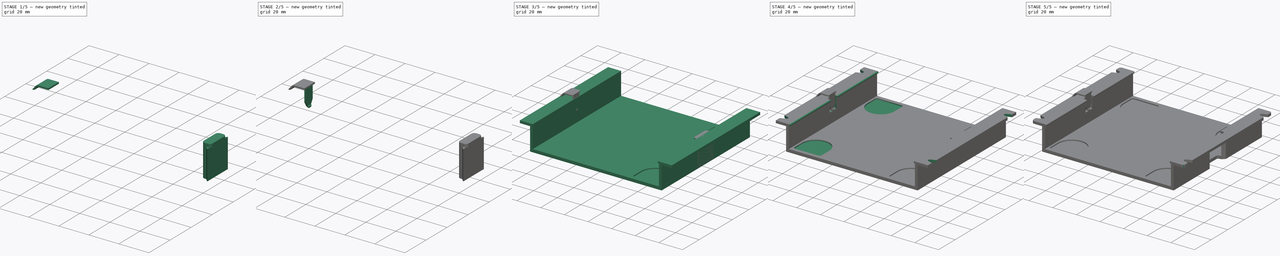
[diagram: build sequence overview — one tinted view per stage of 5, left to right]
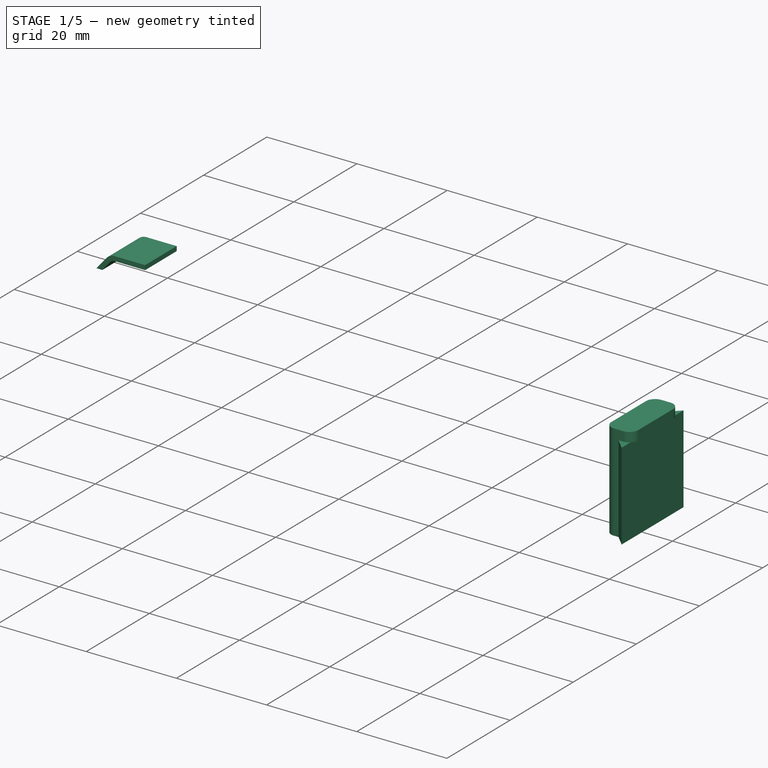
[diagram: stage 1 of 5 — iso view after this stage's code; geometry added in this stage tinted green]
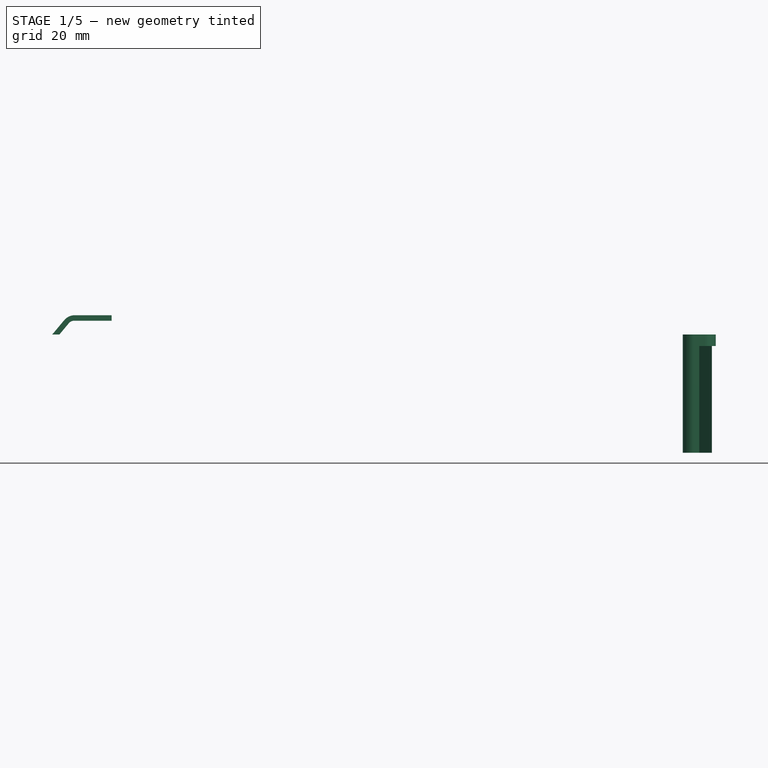
[diagram: stage 1 of 5 — front view after this stage's code; geometry added in this stage tinted green]
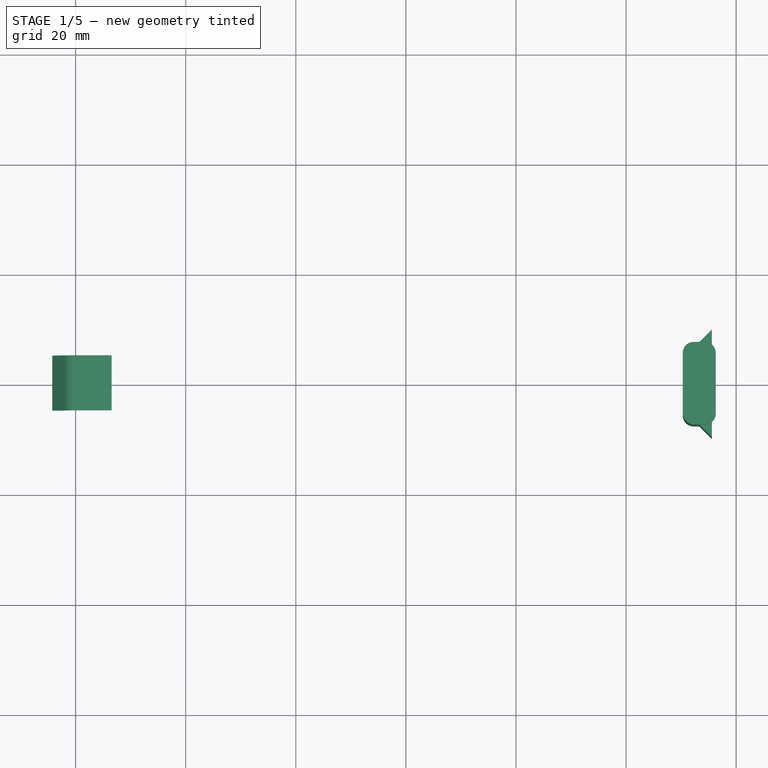
[diagram: stage 1 of 5 — top view after this stage's code; geometry added in this stage tinted green]
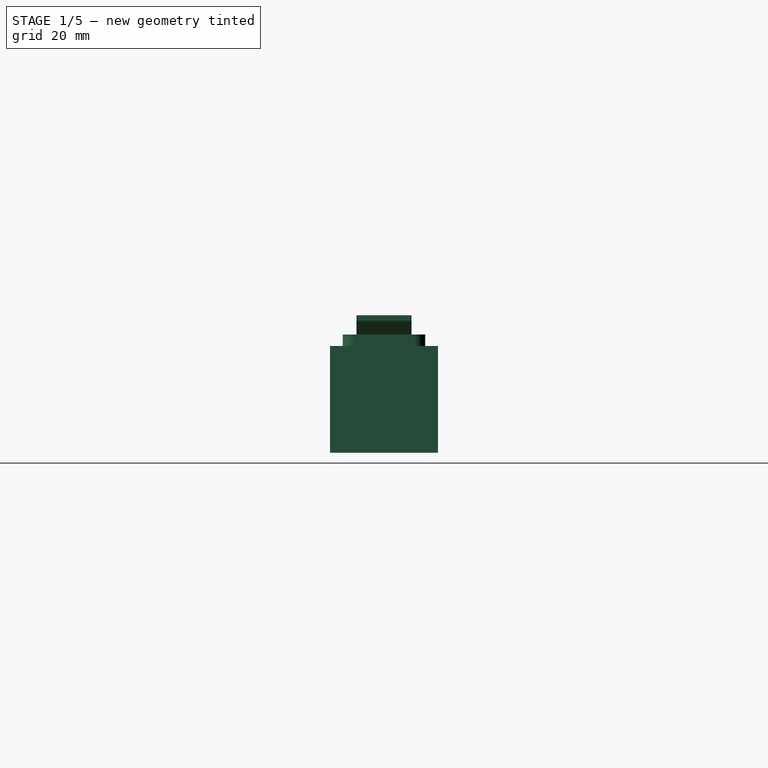
[diagram: stage 1 of 5 — right view after this stage's code; geometry added in this stage tinted green]
FCSTD DOCUMENT  (FreeCAD 0.21R33668 +26 (Git))
Label: eurorack_adapter
License: All rights reserved
LicenseURL: https://en.wikipedia.org/wiki/All_rights_reserved
objects: Sketcher::SketchObject×10, PartDesign::Pad×6, PartDesign::Pocket×4, PartDesign::Body×3, PartDesign::Mirrored×2, PartDesign::Fillet×2, PartDesign::Boolean×2
note: 41 computed .brp shape members not serialized (recipe doc carries the construction recipe); baked Part::Feature solids carry a one-line shape summary decoded from their .brp

FEATURE [Sketcher::SketchObject] Sketch011
  FullyConstrained = true
  MapMode = 5
  Support = -> [XY_Plane002]
  sketch-geometry (8):
    g0: LineSegment StartX=50.3 StartY=5.5 StartZ=0 EndX=50.3 EndY=-5.5 EndZ=0
    g1: LineSegment StartX=52.3 StartY=7.5 StartZ=0 EndX=53.3 EndY=7.5 EndZ=0
    g2: LineSegment StartX=53.3 StartY=-7.5 StartZ=0 EndX=52.3 EndY=-7.5 EndZ=0
    g3: LineSegment StartX=53.3 StartY=-7.5 StartZ=0 EndX=55.6 EndY=-9.8 EndZ=0
    g4: LineSegment StartX=53.3 StartY=7.5 StartZ=0 EndX=55.6 EndY=9.8 EndZ=0
    g5: LineSegment StartX=55.6 StartY=9.8 StartZ=0 EndX=55.6 EndY=-9.8 EndZ=0
    g6: ArcOfCircle CenterX=52.3 CenterY=-5.5 CenterZ=0 NormalX=0 NormalY=0 NormalZ=1 AngleXU=0 Radius=2 StartAngle=3.14159 EndAngle=4.71239
    g7: ArcOfCircle CenterX=52.3 CenterY=5.5 CenterZ=0 NormalX=0 NormalY=0 NormalZ=1 AngleXU=0 Radius=2 StartAngle=1.5708 EndAngle=3.14159
  constraints (19):
    c: Horizontal(g1)
    c: Horizontal(g2)
    c: DistanceX(g-1,g1) = 53.3
    c: Coincident(g4,g1)
    c: Tangent(g2,g6) = 1.5708
    c: Tangent(g0,g6) = -1.5708
    c: Tangent(g1,g7) = 1.5708
    c: Tangent(g0,g7) = -1.5708
    c: DistanceY(g2,g1) = 15
    c: DistanceX(g0,g1) = 3
    c: Symmetric(g0,g0,g-1)
    c: Coincident(g3,g5)
    c: Coincident(g4,g5)
    c: Symmetric(g3,g4,g-1)
    c: Diameter(g7) = 4
    c: Symmetric(g1,g2,g-1)
    c: DistanceX(g1,g4) = 2.3
    c: Angle(g4,g1) = 2.35619
    c: Coincident(g3,g2)
FEATURE [Sketcher::SketchObject] Sketch024
  FullyConstrained = true
  MapMode = 5
  Placement = pos=(0,0,0) rot=(1,0,0;1.5708rad)
  Support = -> [XZ_Plane001]
  sketch-geometry (7):
    g0: LineSegment StartX=-55.7 StartY=3 StartZ=0 EndX=-53.3 EndY=3 EndZ=0
    g1: LineSegment StartX=-53.3 StartY=-16.9 StartZ=0 EndX=0 EndY=-16.9 EndZ=0
    g2: LineSegment StartX=-54.9 StartY=3 StartZ=0 EndX=-54.9 EndY=-6.24863 EndZ=0
    g3: LineSegment StartX=-53.3835 StartY=-7.89322 StartZ=0 EndX=-53.3 EndY=-7.9 EndZ=0
    g4: ArcOfCircle CenterX=-53.25 CenterY=-6.24863 CenterZ=0 NormalX=0 NormalY=0 NormalZ=1 AngleXU=0 Radius=1.65 StartAngle=3.14159 EndAngle=4.63141
    g5: LineSegment StartX=-54.9 StartY=3 StartZ=0 EndX=-51.9 EndY=3 EndZ=0
    g6: LineSegment StartX=-51.9 StartY=3 StartZ=0 EndX=-53.3 EndY=-7.9 EndZ=0
  constraints (23):
    c: Horizontal(g0)
    c: DistanceY(g-1,g0) = 3
    c: PointOnObject(g1,g-2)
    c: Horizontal(g1)
    c: DistanceY(g1,g-1) = 16.9
    c: DistanceX(g1,g1) = 53.3
    c: Vertical(g0,g1)
    c: PointOnObject(g2,g0)
    c: Vertical(g2)
    c: Tangent(g3,g4) = -1.5708
    c: Tangent(g2,g4) = -1.5708
    c: DistanceY(g1,g3) = 9
    c: DistanceX(g0,g0) = 2.4
    c: DistanceX(g0,g2) = 0.8
    c: Vertical(g3,g1)
    c: Coincident(g5,g2)
    c: Horizontal(g5)
    c: Coincident(g6,g5)
    c: Coincident(g6,g3)
    c: DistanceX(g5,g5) = 3
    c: Angle(g3,g2) = 1.65178
    c: Diameter(g4) = 3.3
    c: DistanceX(g2,g-1) = 54.9
FEATURE [Sketcher::SketchObject] Sketch025
  FullyConstrained = true
  MapMode = 5
  Placement = pos=(0,0,0) rot=(1,0,0;1.5708rad)
  Support = -> [XZ_Plane]
  sketch-geometry (27):
    g0: LineSegment StartX=-64.25 StartY=2.1 StartZ=0 EndX=0 EndY=2.1 EndZ=0
    g1: LineSegment StartX=-64.25 StartY=2.1 StartZ=0 EndX=-62.0625 EndY=4.70697 EndZ=0
    g2: LineSegment StartX=-60.1474 StartY=5.6 StartZ=0 EndX=-53.45 EndY=5.6 EndZ=0
    g3: LineSegment StartX=-53.45 StartY=5.6 StartZ=0 EndX=-53.45 EndY=4.6 EndZ=0
    g4: LineSegment StartX=-53.45 StartY=4.6 StartZ=0 EndX=-53.7 EndY=4.6 EndZ=0
    g5: LineSegment StartX=-61.2215 StartY=4.15348 StartZ=0 EndX=-62.9446 EndY=2.1 EndZ=0
    g6: LineSegment StartX=-53.95 StartY=4.6 StartZ=0 EndX=-53.95 EndY=3.1 EndZ=0
    g7: LineSegment StartX=-53.95 StartY=3.1 StartZ=0 EndX=-53.7 EndY=3.1 EndZ=0
    g8: LineSegment StartX=-53.7 StartY=3.1 StartZ=0 EndX=-53.7 EndY=-6.20925 EndZ=0
    g9: LineSegment StartX=-54.45 StartY=4.6 StartZ=0 EndX=-54.45 EndY=3.1 EndZ=0
    g10: LineSegment StartX=-54.45 StartY=3.1 StartZ=0 EndX=-54.7 EndY=3.1 EndZ=0
    g11: LineSegment StartX=-54.7 StartY=3.1 StartZ=0 EndX=-54.7 EndY=-6.10313 EndZ=0
    g12: LineSegment StartX=-53.2 StartY=-7.7 StartZ=0 EndX=-53.2 EndY=-6.7 EndZ=0
    g13: LineSegment StartX=-53.2 StartY=-6.7 StartZ=0 EndX=-53.525 EndY=-6.51236 EndZ=0
    g14: LineSegment StartX=-54.7 StartY=4.6 StartZ=0 EndX=-60.264 EndY=4.6 EndZ=0
    g15: LineSegment StartX=-62.9446 StartY=2.1 StartZ=0 EndX=-63.7106 EndY=2.74279 EndZ=0
    g16: LineSegment StartX=-64.25 StartY=2.1 StartZ=0 EndX=-62.9446 EndY=2.1 EndZ=0
    g17: ArcOfCircle CenterX=-60.1474 CenterY=3.1 CenterZ=0 NormalX=0 NormalY=0 NormalZ=1 AngleXU=0 Radius=2.5 StartAngle=1.5708 EndAngle=2.44346
    g18: ArcOfCircle CenterX=-60.264 CenterY=3.35 CenterZ=0 NormalX=0 NormalY=0 NormalZ=1 AngleXU=0 Radius=1.25 StartAngle=1.5708 EndAngle=2.44346
    g19: ArcOfCircle CenterX=-53.35 CenterY=-6.20925 CenterZ=0 NormalX=0 NormalY=0 NormalZ=1 AngleXU=0 Radius=0.35 StartAngle=3.14159 EndAngle=4.18879
    g20: ArcOfCircle CenterX=-53.1 CenterY=-6.10313 CenterZ=0 NormalX=0 NormalY=0 NormalZ=1 AngleXU=0 Radius=1.6 StartAngle=3.14159 EndAngle=4.64985
    g21: LineSegment StartX=-64.25 StartY=-16.9 StartZ=0 EndX=0 EndY=-16.9 EndZ=0
    g22: LineSegment StartX=-54.7 StartY=3.1 StartZ=0 EndX=-54.7 EndY=4.6 EndZ=0
    g23: LineSegment StartX=-53.7 StartY=3.1 StartZ=0 EndX=-53.7 EndY=4.6 EndZ=0
    g24: LineSegment StartX=-54.7 StartY=4.6 StartZ=0 EndX=-54.45 EndY=4.6 EndZ=0
    g25: LineSegment StartX=-53.95 StartY=4.6 StartZ=0 EndX=-53.7 EndY=4.6 EndZ=0
    g26: LineSegment StartX=-54.7 StartY=4.6 StartZ=0 EndX=-53.7 EndY=4.6 EndZ=0
  constraints (78):
    c: Horizontal(g0)
    c: DistanceY(g-1,g0) = 2.1
    c: PointOnObject(g1,g0)
    c: Horizontal(g2)
    c: Coincident(g3,g2)
    c: Coincident(g4,g3)
    c: Horizontal(g4)
    c: PointOnObject(g5,g0)
    c: Vertical(g6)
    c: Coincident(g7,g6)
    c: Coincident(g8,g7)
    c: Vertical(g8)
    c: Coincident(g10,g9)
    c: Coincident(g11,g10)
    c: Vertical(g11)
    c: Vertical(g12)
    c: Coincident(g13,g12)
    c: Horizontal(g10)
    c: Vertical(g9)
    c: Horizontal(g7)
    c: Vertical(g3)
    c: Horizontal(g6,g9)
    c: DistanceY(g3,g3) = 1
    c: Horizontal(g14)
    c: Parallel(g5,g1)
    c: Coincident(g15,g5)
    c: PointOnObject(g15,g1)
    c: Perpendicular(g1,g15)
    c: Distance(g15) = 1
    c: Coincident(g16,g1)
    c: Coincident(g16,g5)
    c: Tangent(g1,g17) = 1.5708
    c: Tangent(g2,g17) = 1.5708
    c: Tangent(g5,g18) = -1.5708
    c: Tangent(g14,g18) = -1.5708
    c: Angle(g0,g5) = 0.872665
    c: Diameter(g17) = 5
    c: Diameter(g18) = 2.5
    c: DistanceX(g9,g6) = 0.5
    c: Equal(g7,g10)
    c: DistanceY(g0,g2) = 3.5
    c: DistanceX(g0,g-1) = 64.25
    c: PointOnObject(g0,g-2)
    c: DistanceX(g0,g1) = 0
    c: Tangent(g13,g19) = 1.5708
    c: Tangent(g8,g19) = -1.5708
    c: Tangent(g11,g20) = -1.5708
    c: DistanceY(g12,g12) = 1
    c: Diameter(g19) = 0.7
    c: Diameter(g20) = 3.2
    c: DistanceX(g11,g12) = 1.5
    c: DistanceX(g10,g7) = 1
    c: DistanceX(g7,g-1) = 53.7
    c: DistanceX(g6,g3) = 0.5
    c: PointOnObject(g21,g-2)
    c: Horizontal(g21)
    c: DistanceY(g21,g-1) = 16.9
    c: Vertical(g21,g0)
    c: DistanceY(g21,g12) = 9.2
    c: DistanceY(g9,g9) = 1.5
    c: Coincident(g20,g12)
    c: Angle(g13,g11) = 2.0944
    c: DistanceY(g12,g-1) = 7.7
    c: Coincident(g22,g10)
    c: Vertical(g22)
    c: Coincident(g23,g7)
    c: Vertical(g23)
    c: Coincident(g14,g22)
    c: Coincident(g4,g23)
    c: Coincident(g24,g14)
    c: Coincident(g24,g9)
    c: Horizontal(g24)
    c: Coincident(g25,g6)
    c: Coincident(g25,g4)
    c: Horizontal(g25)
    c: Horizontal(g9,g6)
    c: Coincident(g26,g14)
    c: Coincident(g26,g4)
FEATURE [Sketcher::SketchObject] Sketch027
  FullyConstrained = true
  MapMode = 5
  Placement = pos=(0,0,0) rot=(0.57735,0.57735,0.57735;2.0944rad)
  Support = -> [YZ_Plane]
  sketch-geometry (3):
    g0: LineSegment StartX=3.25 StartY=-3.7 StartZ=0 EndX=0.940599 EndY=-7.7 EndZ=0
    g1: LineSegment StartX=3.25 StartY=-3.7 StartZ=0 EndX=3.25 EndY=-7.7 EndZ=0
    g2: LineSegment StartX=3.25 StartY=-7.7 StartZ=0 EndX=0.940599 EndY=-7.7 EndZ=0
  constraints (10):
    c: Vertical(g1)
    c: Coincident(g2,g0)
    c: Coincident(g0,g1)
    c: Coincident(g1,g2)
    c: Horizontal(g2)
    c: DistanceY(g0,g-1) = 7.7
    c: DistanceX(g-1,g0) = 3.25
    c: DistanceY(g1,g1) = 4
    c: Angle(g2,g0) = 1.0472
    c: Angle(g0,g1) = 0.523599
FEATURE [PartDesign::Pad] Pad003
  Direction = (0,-1,-2e-16)
  Length = 10
  Length2 = 10
  Midplane = true
  Placement = pos=(0,0,0) rot=(1,0,0;1.5708rad)
  Profile = -> Sketch025
  ReferenceAxis = -> Sketch025 [N_Axis]
  Refine = true
  Type = 0
FEATURE [PartDesign::Pad] Pad004
  Direction = (0,0,1)
  Length = 19.4
  Length2 = 10
  Profile = -> Sketch011
  ReferenceAxis = -> Sketch011 [N_Axis]
  Reversed = true
  Type = 0
FEATURE [Sketcher::SketchObject] Sketch029
  FullyConstrained = true
  MapMode = 5
  Support = -> [XY_Plane002]
  sketch-geometry (13):
    g0: LineSegment StartX=50.3 StartY=5.5 StartZ=0 EndX=50.3 EndY=-5.5 EndZ=0
    g1: LineSegment StartX=52.3 StartY=7.5 StartZ=0 EndX=53.3 EndY=7.5 EndZ=0
    g2: LineSegment StartX=53.3 StartY=7.5 StartZ=0 EndX=56.3 EndY=6.5 EndZ=0
    g3: LineSegment StartX=56.3 StartY=-6.5 StartZ=0 EndX=53.3 EndY=-7.5 EndZ=0
    g4: LineSegment StartX=53.3 StartY=-7.5 StartZ=0 EndX=52.3 EndY=-7.5 EndZ=0
    g5: GeomPoint X=56.3 Y=0 Z=0
    g6: LineSegment StartX=53.3 StartY=-7.5 StartZ=0 EndX=54.3 EndY=-7.5 EndZ=0
    g7: LineSegment StartX=53.3 StartY=7.5 StartZ=0 EndX=54.3 EndY=7.5 EndZ=0
    g8: LineSegment StartX=56.3 StartY=5.5 StartZ=0 EndX=56.3 EndY=-5.5 EndZ=0
    g9: ArcOfCircle CenterX=54.3 CenterY=5.5 CenterZ=0 NormalX=0 NormalY=0 NormalZ=1 AngleXU=0 Radius=2 StartAngle=1e-16 EndAngle=1.5708
    g10: ArcOfCircle CenterX=54.3 CenterY=-5.5 CenterZ=0 NormalX=0 NormalY=0 NormalZ=1 AngleXU=0 Radius=2 StartAngle=4.71239 EndAngle=6.28319
    g11: ArcOfCircle CenterX=52.3 CenterY=-5.5 CenterZ=0 NormalX=0 NormalY=0 NormalZ=1 AngleXU=0 Radius=2 StartAngle=3.14159 EndAngle=4.71239
    g12: ArcOfCircle CenterX=52.3 CenterY=5.5 CenterZ=0 NormalX=0 NormalY=0 NormalZ=1 AngleXU=0 Radius=2 StartAngle=1.5708 EndAngle=3.14159
  constraints (32):
    c: Horizontal(g1)
    c: Coincident(g2,g1)
    c: Coincident(g4,g3)
    c: Horizontal(g4)
    c: DistanceY(g3,g2) = 13
    c: Equal(g4,g1)
    c: DistanceX(g-1,g1) = 53.3
    c: DistanceX(g2,g2) = 3
    c: Symmetric(g2,g3,g5)
    c: PointOnObject(g5,g-1)
    c: Coincident(g6,g3)
    c: Horizontal(g6)
    c: Coincident(g7,g1)
    c: Horizontal(g7)
    c: Vertical(g8)
    c: Tangent(g8,g9) = 1.5708
    c: Tangent(g7,g9) = 1.5708
    c: Tangent(g8,g10) = 1.5708
    c: Tangent(g6,g10) = -1.5708
    c: Tangent(g4,g11) = 1.5708
    c: Tangent(g0,g11) = -1.5708
    c: Tangent(g1,g12) = 1.5708
    c: Tangent(g0,g12) = -1.5708
    c: DistanceY(g4,g1) = 15
    c: DistanceX(g0,g1) = 3
    c: Equal(g12,g9)
    c: Equal(g9,g10)
    c: Equal(g10,g11)
    c: PointOnObject(g2,g8)
    c: PointOnObject(g3,g8)
    c: Symmetric(g0,g0,g-1)
    c: Diameter(g9) = 4
FEATURE [PartDesign::Pad] Pad005
  BaseFeature = -> Pad004
  Direction = (0,0,1)
  Length = 2.1
  Length2 = 10
  Profile = -> Sketch029
  ReferenceAxis = -> Sketch029 [N_Axis]
  Type = 0
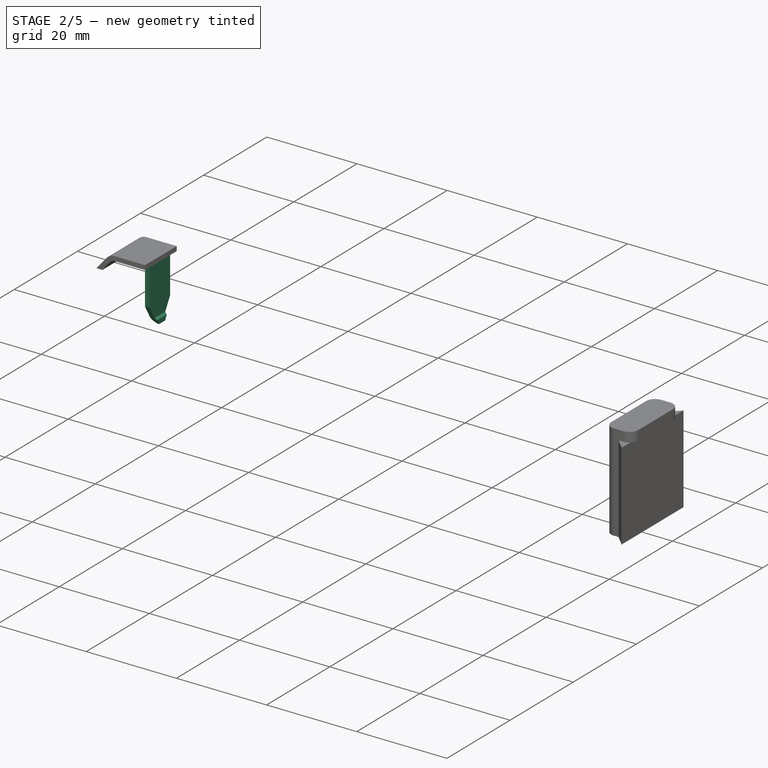
[diagram: stage 2 of 5 — iso view after this stage's code; geometry added in this stage tinted green]
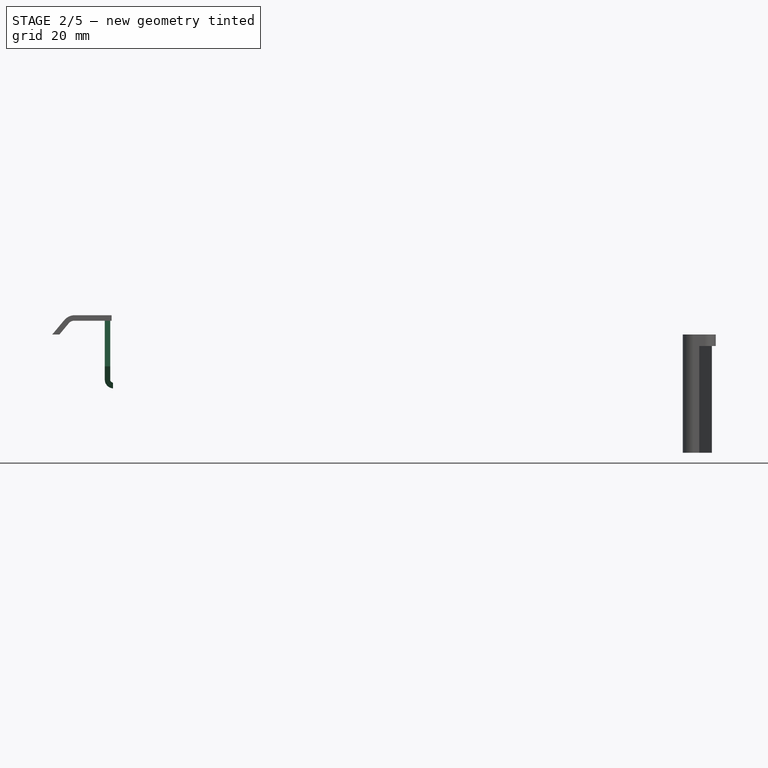
[diagram: stage 2 of 5 — front view after this stage's code; geometry added in this stage tinted green]
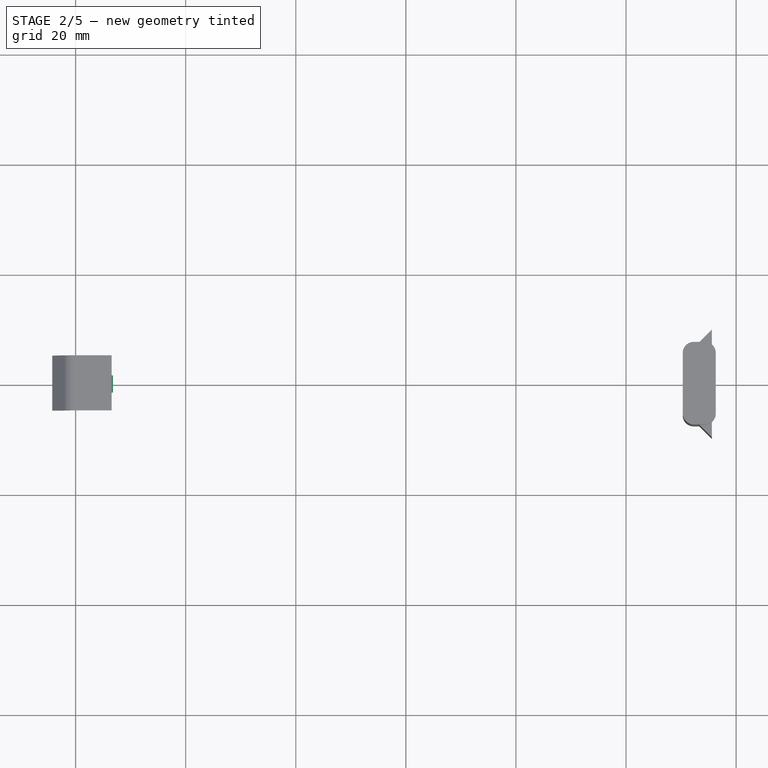
[diagram: stage 2 of 5 — top view after this stage's code; geometry added in this stage tinted green]
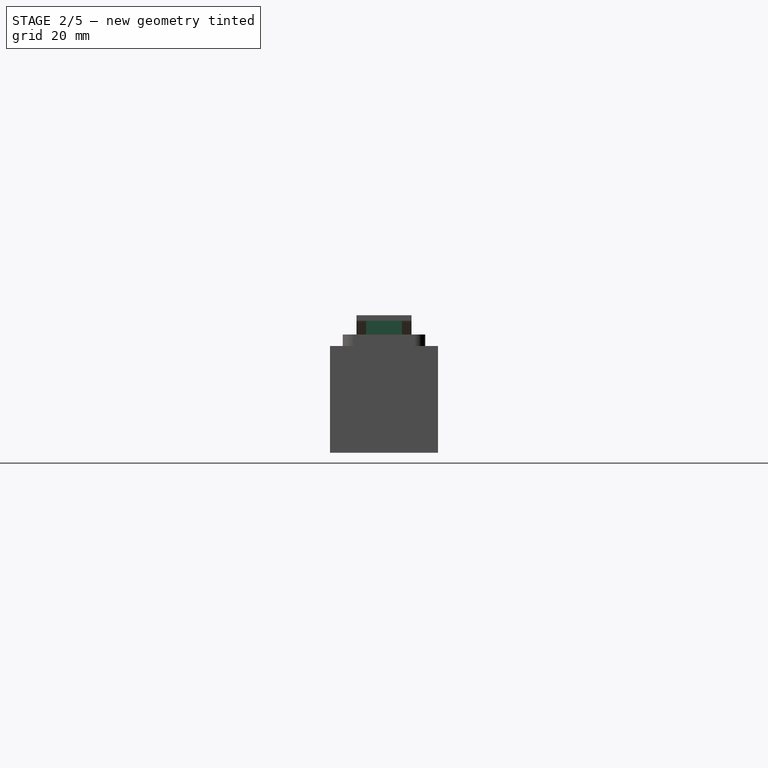
[diagram: stage 2 of 5 — right view after this stage's code; geometry added in this stage tinted green]
FEATURE [Sketcher::SketchObject] Sketch028
  FullyConstrained = true
  MapMode = 5
  Placement = pos=(0,0,0) rot=(1,0,0;1.5708rad)
  Support = -> [XZ_Plane]
  sketch-geometry (27):
    g0: LineSegment StartX=-64.25 StartY=2.1 StartZ=0 EndX=0 EndY=2.1 EndZ=0
    g1: LineSegment StartX=-64.25 StartY=2.1 StartZ=0 EndX=-62.0625 EndY=4.70697 EndZ=0
    g2: LineSegment StartX=-60.1474 StartY=5.6 StartZ=0 EndX=-53.45 EndY=5.6 EndZ=0
    g3: LineSegment StartX=-53.45 StartY=5.6 StartZ=0 EndX=-53.45 EndY=4.6 EndZ=0
    g4: LineSegment StartX=-53.45 StartY=4.6 StartZ=0 EndX=-53.7 EndY=4.6 EndZ=0
    g5: LineSegment StartX=-61.2215 StartY=4.15348 StartZ=0 EndX=-62.9446 EndY=2.1 EndZ=0
    g6: LineSegment StartX=-53.95 StartY=4.6 StartZ=0 EndX=-53.95 EndY=3.1 EndZ=0
    g7: LineSegment StartX=-53.95 StartY=3.1 StartZ=0 EndX=-53.7 EndY=3.1 EndZ=0
    g8: LineSegment StartX=-53.7 StartY=3.1 StartZ=0 EndX=-53.7 EndY=-6.20925 EndZ=0
    g9: LineSegment StartX=-54.45 StartY=4.6 StartZ=0 EndX=-54.45 EndY=3.1 EndZ=0
    g10: LineSegment StartX=-54.45 StartY=3.1 StartZ=0 EndX=-54.7 EndY=3.1 EndZ=0
    g11: LineSegment StartX=-54.7 StartY=3.1 StartZ=0 EndX=-54.7 EndY=-6.10313 EndZ=0
    g12: LineSegment StartX=-53.2 StartY=-7.7 StartZ=0 EndX=-53.2 EndY=-6.7 EndZ=0
    g13: LineSegment StartX=-53.2 StartY=-6.7 StartZ=0 EndX=-53.525 EndY=-6.51236 EndZ=0
    g14: LineSegment StartX=-54.7 StartY=4.6 StartZ=0 EndX=-60.264 EndY=4.6 EndZ=0
    g15: LineSegment StartX=-62.9446 StartY=2.1 StartZ=0 EndX=-63.7106 EndY=2.74279 EndZ=0
    g16: LineSegment StartX=-64.25 StartY=2.1 StartZ=0 EndX=-62.9446 EndY=2.1 EndZ=0
    g17: ArcOfCircle CenterX=-60.1474 CenterY=3.1 CenterZ=0 NormalX=0 NormalY=0 NormalZ=1 AngleXU=0 Radius=2.5 StartAngle=1.5708 EndAngle=2.44346
    g18: ArcOfCircle CenterX=-60.264 CenterY=3.35 CenterZ=0 NormalX=0 NormalY=0 NormalZ=1 AngleXU=0 Radius=1.25 StartAngle=1.5708 EndAngle=2.44346
    g19: ArcOfCircle CenterX=-53.35 CenterY=-6.20925 CenterZ=0 NormalX=0 NormalY=0 NormalZ=1 AngleXU=0 Radius=0.35 StartAngle=3.14159 EndAngle=4.18879
    g20: ArcOfCircle CenterX=-53.1 CenterY=-6.10313 CenterZ=0 NormalX=0 NormalY=0 NormalZ=1 AngleXU=0 Radius=1.6 StartAngle=3.14159 EndAngle=4.64985
    g21: LineSegment StartX=-64.25 StartY=-16.9 StartZ=0 EndX=0 EndY=-16.9 EndZ=0
    g22: LineSegment StartX=-54.7 StartY=3.1 StartZ=0 EndX=-54.7 EndY=4.6 EndZ=0
    g23: LineSegment StartX=-53.7 StartY=3.1 StartZ=0 EndX=-53.7 EndY=4.6 EndZ=0
    g24: LineSegment StartX=-54.7 StartY=4.6 StartZ=0 EndX=-54.45 EndY=4.6 EndZ=0
    g25: LineSegment StartX=-53.95 StartY=4.6 StartZ=0 EndX=-53.7 EndY=4.6 EndZ=0
    g26: LineSegment StartX=-54.7 StartY=4.6 StartZ=0 EndX=-53.7 EndY=4.6 EndZ=0
  constraints (78):
    c: Horizontal(g0)
    c: DistanceY(g-1,g0) = 2.1
    c: PointOnObject(g1,g0)
    c: Horizontal(g2)
    c: Coincident(g3,g2)
    c: Coincident(g4,g3)
    c: Horizontal(g4)
    c: PointOnObject(g5,g0)
    c: Vertical(g6)
    c: Coincident(g7,g6)
    c: Coincident(g8,g7)
    c: Vertical(g8)
    c: Coincident(g10,g9)
    c: Coincident(g11,g10)
    c: Vertical(g11)
    c: Vertical(g12)
    c: Coincident(g13,g12)
    c: Horizontal(g10)
    c: Vertical(g9)
    c: Horizontal(g7)
    c: Vertical(g3)
    c: Horizontal(g6,g9)
    c: DistanceY(g3,g3) = 1
    c: Horizontal(g14)
    c: Parallel(g5,g1)
    c: Coincident(g15,g5)
    c: PointOnObject(g15,g1)
    c: Perpendicular(g1,g15)
    c: Distance(g15) = 1
    c: Coincident(g16,g1)
    c: Coincident(g16,g5)
    c: Tangent(g1,g17) = 1.5708
    c: Tangent(g2,g17) = 1.5708
    c: Tangent(g5,g18) = -1.5708
    c: Tangent(g14,g18) = -1.5708
    c: Angle(g0,g5) = 0.872665
    c: Diameter(g17) = 5
    c: Diameter(g18) = 2.5
    c: DistanceX(g9,g6) = 0.5
    c: Equal(g7,g10)
    c: DistanceY(g0,g2) = 3.5
    c: DistanceX(g0,g-1) = 64.25
    c: PointOnObject(g0,g-2)
    c: DistanceX(g0,g1) = 0
    c: Tangent(g13,g19) = 1.5708
    c: Tangent(g8,g19) = -1.5708
    c: Tangent(g11,g20) = -1.5708
    c: DistanceY(g12,g12) = 1
    c: Diameter(g19) = 0.7
    c: Diameter(g20) = 3.2
    c: DistanceX(g11,g12) = 1.5
    c: DistanceX(g10,g7) = 1
    c: DistanceX(g7,g-1) = 53.7
    c: DistanceX(g6,g3) = 0.5
    c: PointOnObject(g21,g-2)
    c: Horizontal(g21)
    c: DistanceY(g21,g-1) = 16.9
    c: Vertical(g21,g0)
    c: DistanceY(g21,g12) = 9.2
    c: DistanceY(g9,g9) = 1.5
    c: Coincident(g20,g12)
    c: Angle(g13,g11) = 2.0944
    c: DistanceY(g12,g-1) = 7.7
    c: Coincident(g22,g10)
    c: Vertical(g22)
    c: Coincident(g23,g7)
    c: Vertical(g23)
    c: Coincident(g14,g22)
    c: Coincident(g4,g23)
    c: Coincident(g24,g14)
    c: Coincident(g24,g9)
    c: Horizontal(g24)
    c: Coincident(g25,g6)
    c: Coincident(g25,g4)
    c: Horizontal(g25)
    c: Horizontal(g9,g6)
    c: Coincident(g26,g22)
    c: Coincident(g26,g4)
FEATURE [PartDesign::Pad] Pad
  BaseFeature = -> Pad003
  Direction = (0,-1,-2e-16)
  Length = 6.5
  Length2 = 10
  Midplane = true
  Placement = pos=(0,0,0) rot=(1,0,0;1.5708rad)
  Profile = -> Sketch028
  ReferenceAxis = -> Sketch028 [N_Axis]
  Type = 0
FEATURE [PartDesign::Pocket] Pocket012
  BaseFeature = -> Pad
  Direction = (-1,2e-16,-3e-16)
  Length = 54.7
  Length2 = 5
  Placement = pos=(0,0,0) rot=(1,0,0;1.5708rad)
  Profile = -> Sketch027
  ReferenceAxis = -> Sketch027 [N_Axis]
  Type = 0
FEATURE [PartDesign::Mirrored] Mirrored001
  BaseFeature = -> Pocket012
  MirrorPlane = -> Sketch027 [V_Axis]
  Originals = -> [Pocket012]
  Placement = pos=(0,0,0) rot=(1,0,0;1.5708rad)
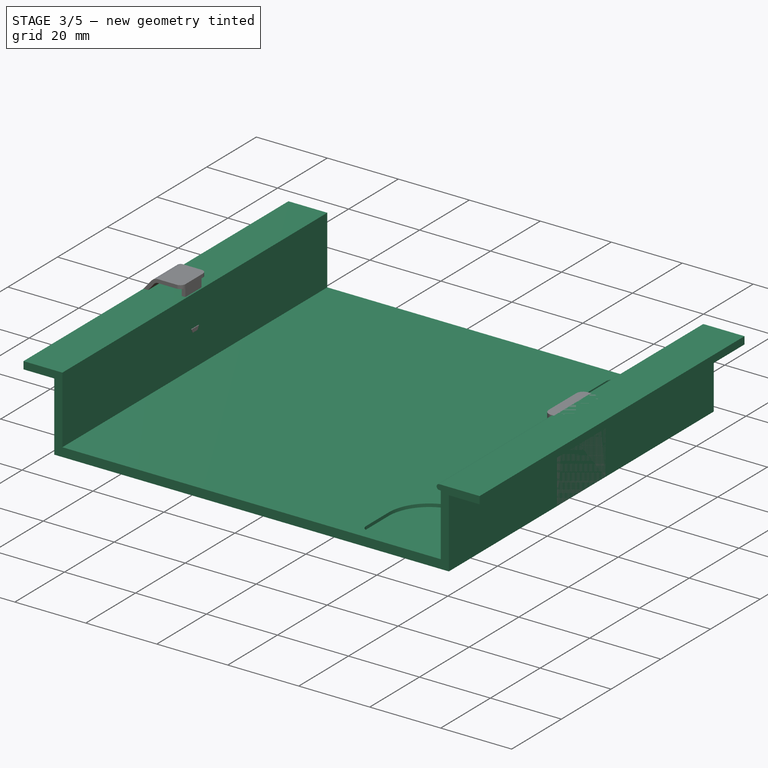
[diagram: stage 3 of 5 — iso view after this stage's code; geometry added in this stage tinted green]
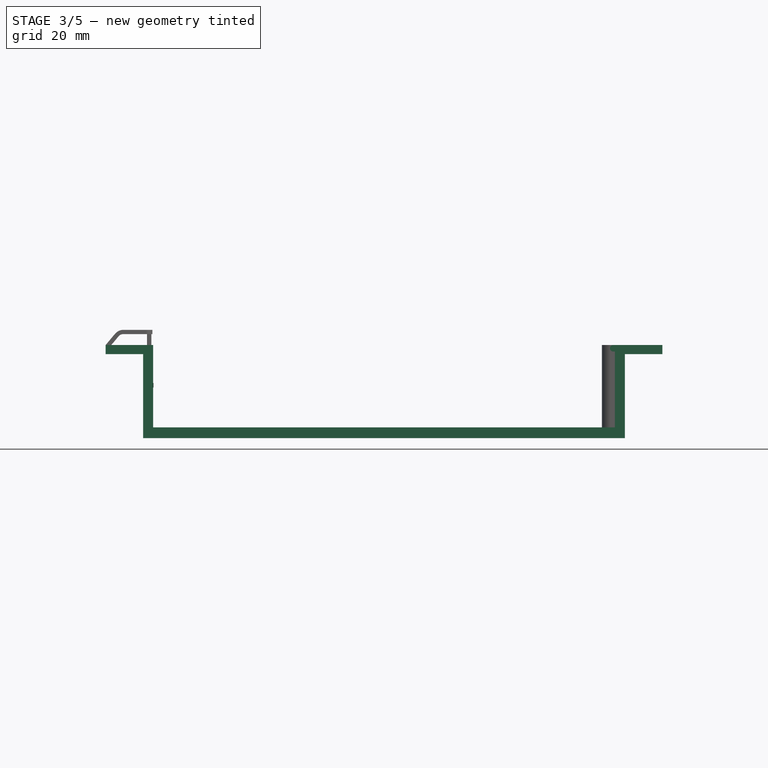
[diagram: stage 3 of 5 — front view after this stage's code; geometry added in this stage tinted green]
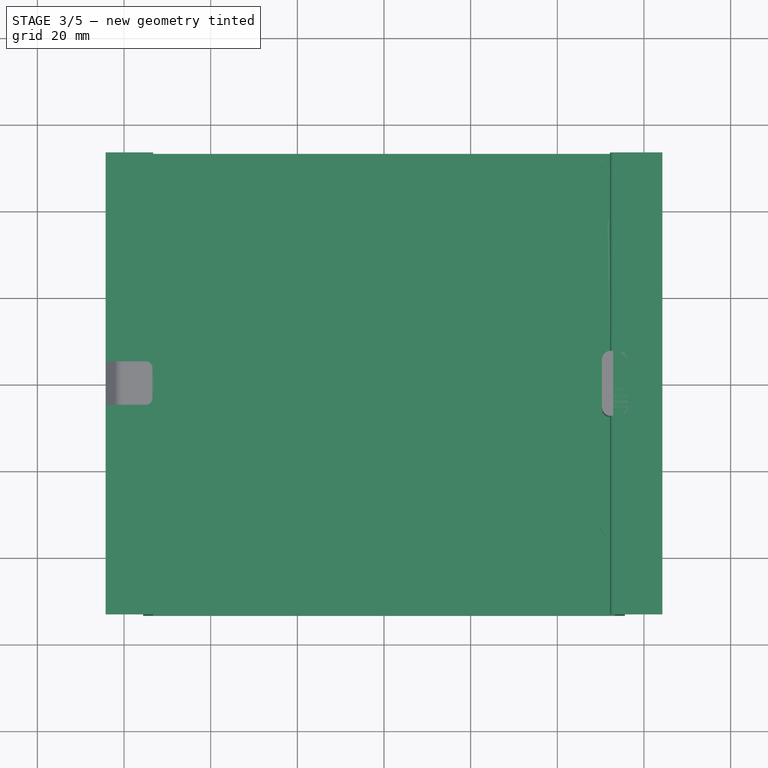
[diagram: stage 3 of 5 — top view after this stage's code; geometry added in this stage tinted green]
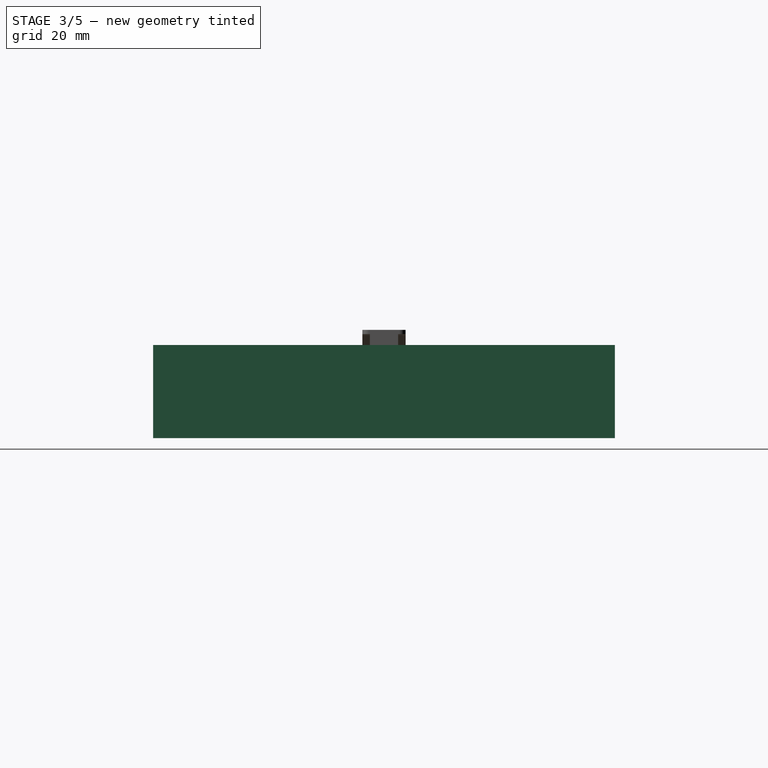
[diagram: stage 3 of 5 — right view after this stage's code; geometry added in this stage tinted green]
FEATURE [Sketcher::SketchObject] Sketch001
  FullyConstrained = true
  MapMode = 5
  Placement = pos=(0,0,0) rot=(1,0,0;1.5708rad)
  Support = -> [XZ_Plane001]
  sketch-geometry (15):
    g0: LineSegment StartX=64.25 StartY=0 StartZ=0 EndX=55.6 EndY=0 EndZ=0
    g1: LineSegment StartX=55.6 StartY=0 StartZ=0 EndX=55.6 EndY=-19.4 EndZ=0
    g2: LineSegment StartX=64.25 StartY=0 StartZ=0 EndX=64.25 EndY=2.1 EndZ=0
    g3: LineSegment StartX=64.25 StartY=2.1 StartZ=0 EndX=53.3 EndY=2.1 EndZ=0
    g4: LineSegment StartX=53.3 StartY=2.1 StartZ=0 EndX=53.3 EndY=-16.9 EndZ=0
    g5: LineSegment StartX=53.3 StartY=-16.9 StartZ=0 EndX=0 EndY=-16.9 EndZ=0
    g6: LineSegment StartX=0 StartY=-16.9 StartZ=0 EndX=-53.3 EndY=-16.9 EndZ=0
    g7: LineSegment StartX=-53.3 StartY=-16.9 StartZ=0 EndX=-53.3 EndY=2.1 EndZ=0
    g8: LineSegment StartX=-53.3 StartY=2.1 StartZ=0 EndX=-64.25 EndY=2.1 EndZ=0
    g9: LineSegment StartX=-64.25 StartY=2.1 StartZ=0 EndX=-64.25 EndY=0 EndZ=0
    g10: LineSegment StartX=-64.25 StartY=0 StartZ=0 EndX=-55.6 EndY=0 EndZ=0
    g11: LineSegment StartX=-55.6 StartY=0 StartZ=0 EndX=-55.6 EndY=-19.4 EndZ=0
    g12: LineSegment StartX=-55.6 StartY=-19.4 StartZ=0 EndX=55.6 EndY=-19.4 EndZ=0
    g13: LineSegment StartX=-64.25 StartY=2.1 StartZ=0 EndX=64.25 EndY=2.1 EndZ=0
    g14: GeomPoint X=0 Y=2.1 Z=0
  constraints (49):
    c: Vertical(g1)
    c: Coincident(g3,g2)
    c: Horizontal(g3)
    c: Coincident(g4,g3)
    c: Vertical(g4)
    c: DistanceY(g0,g3) = 2.1
    c: DistanceX(g3,g0) = 2.3
    c: DistanceY(g4,g3) = 19
    c: Coincident(g5,g4)
    c: Horizontal(g5)
    c: DistanceY(g1,g4) = 2.5
    c: DistanceX(g5,g2) = 64.25
    c: Horizontal(g0)
    c: Coincident(g0,g1)
    c: PointOnObject(g5,g-2)
    c: Coincident(g2,g0)
    c: Vertical(g2)
    c: PointOnObject(g0,g-1)
    c: DistanceY(g1,g1) = 19.4
    c: DistanceY(g1,g2) = 21.5
    c: DistanceY(g5,g-1) = 16.9
    c: Coincident(g6,g5)
    c: Coincident(g7,g6)
    c: Vertical(g7)
    c: Coincident(g8,g7)
    c: Horizontal(g8)
    c: Coincident(g9,g8)
    c: PointOnObject(g9,g-1)
    c: Coincident(g10,g9)
    c: PointOnObject(g10,g-1)
    c: Coincident(g11,g10)
    c: Vertical(g11)
    c: Coincident(g12,g11)
    c: Coincident(g12,g1)
    c: Horizontal(g12)
    c: DistanceX(g6,g4) = 106.6
    c: Symmetric(g6,g4,g5)
    c: Vertical(g9)
    c: DistanceX(g10,g7) = 2.3
    c: Equal(g9,g2)
    c: DistanceX(g8,g2) = 128.5
    c: Coincident(g13,g8)
    c: Coincident(g13,g2)
    c: Symmetric(g8,g2,g14)
    c: PointOnObject(g14,g-2)
    c: DistanceX(g0,g0) = 8.65
    c: DistanceX(g10,g10) = 8.65
    c: DistanceX(g12,g12) = 111.2
    c: DistanceX(g8,g-1) = 64.25
FEATURE [PartDesign::Pad] Pad001  label="Main"
  Direction = (0,-1,-2e-16)
  Length = 106.6
  Length2 = 10
  Midplane = true
  Placement = pos=(0,0,0) rot=(1,0,0;1.5708rad)
  Profile = -> Sketch001
  ReferenceAxis = -> Sketch001 [N_Axis]
  Refine = true
  Type = 0
FEATURE [Sketcher::SketchObject] Sketch002
  FullyConstrained = true
  MapMode = 5
  Placement = pos=(0,0,0) rot=(1,0,0;1.5708rad)
  Support = -> [XZ_Plane001]
  sketch-geometry (4):
    g0: ArcOfCircle CenterX=52.9 CenterY=1.35 CenterZ=0 NormalX=0 NormalY=0 NormalZ=1 AngleXU=0 Radius=0.75 StartAngle=1.5708 EndAngle=4.71239
    g1: LineSegment StartX=53.3 StartY=2.1 StartZ=0 EndX=52.9 EndY=2.1 EndZ=0
    g2: LineSegment StartX=53.3 StartY=0.6 StartZ=0 EndX=52.9 EndY=0.6 EndZ=0
    g3: LineSegment StartX=53.3 StartY=2.1 StartZ=0 EndX=53.3 EndY=0.6 EndZ=0
  constraints (11):
    c: Horizontal(g2)
    c: Horizontal(g1)
    c: Diameter(g0) = 1.5
    c: Tangent(g0,g2) = 1.5708
    c: Tangent(g0,g1) = -1.5708
    c: DistanceX(g1,g1) = 0.4
    c: Coincident(g3,g1)
    c: Coincident(g3,g2)
    c: Vertical(g3)
    c: DistanceY(g-1,g0) = 2.1
    c: DistanceX(g-1,g1) = 53.3
FEATURE [PartDesign::Pad] Pad002  label="Z-holder"
  BaseFeature = -> Pad001
  Direction = (0,-1,-2e-16)
  Length = 106.6
  Length2 = 10
  Midplane = true
  Placement = pos=(0,0,0) rot=(1,0,0;1.5708rad)
  Profile = -> Sketch002
  ReferenceAxis = -> Sketch002 [N_Axis]
  Type = 0
FEATURE [Sketcher::SketchObject] Sketch003
  ExternalGeometry = -> [Pad002]
  FullyConstrained = true
  MapMode = 5
  Support = -> [XY_Plane001]
  sketch-geometry (12):
    g0: ArcOfCircle CenterX=40.3 CenterY=39.3 CenterZ=0 NormalX=0 NormalY=0 NormalZ=1 AngleXU=0 Radius=11.5 StartAngle=3.14159 EndAngle=6.28319
    g1: LineSegment StartX=28.8 StartY=39.3 StartZ=0 EndX=28.8 EndY=48.3 EndZ=0
    g2: LineSegment StartX=51.8 StartY=39.3 StartZ=0 EndX=51.8 EndY=48.3 EndZ=0
    g3: LineSegment StartX=30.8 StartY=50.3 StartZ=0 EndX=49.8 EndY=50.3 EndZ=0
    g4: ArcOfCircle CenterX=40.3 CenterY=-39.3 CenterZ=0 NormalX=0 NormalY=0 NormalZ=1 AngleXU=0 Radius=11.5 StartAngle=3e-16 EndAngle=3.14159
    g5: LineSegment StartX=28.8 StartY=-39.3 StartZ=0 EndX=28.8 EndY=-48.3 EndZ=0
    g6: LineSegment StartX=51.8 StartY=-39.3 StartZ=0 EndX=51.8 EndY=-48.3 EndZ=0
    g7: LineSegment StartX=30.8 StartY=-50.3 StartZ=0 EndX=49.8 EndY=-50.3 EndZ=0
    g8: ArcOfCircle CenterX=30.8 CenterY=-48.3 CenterZ=0 NormalX=0 NormalY=0 NormalZ=1 AngleXU=0 Radius=2 StartAngle=3.14159 EndAngle=4.71239
    g9: ArcOfCircle CenterX=49.8 CenterY=-48.3 CenterZ=0 NormalX=0 NormalY=0 NormalZ=1 AngleXU=0 Radius=2 StartAngle=4.71239 EndAngle=6.28319
    g10: ArcOfCircle CenterX=30.8 CenterY=48.3 CenterZ=0 NormalX=0 NormalY=0 NormalZ=1 AngleXU=0 Radius=2 StartAngle=1.5708 EndAngle=3.14159
    g11: ArcOfCircle CenterX=49.8 CenterY=48.3 CenterZ=0 NormalX=0 NormalY=0 NormalZ=1 AngleXU=0 Radius=2 StartAngle=2.32e-14 EndAngle=1.5708
  constraints (30):
    c: Diameter(g0) = 23
    c: Vertical(g2)
    c: Tangent(g0,g2) = -1.5708
    c: Tangent(g0,g1) = 1.5708
    c: Diameter(g4) = 23
    c: Vertical(g6)
    c: Vertical(g5)
    c: Tangent(g4,g6) = 1.5708
    c: Tangent(g4,g5) = -1.5708
    c: Horizontal(g7)
    c: Horizontal(g3)
    c: Equal(g1,g5)
    c: Vertical(g1)
    c: Vertical(g0,g4)
    c: Tangent(g5,g8) = -1.5708
    c: Tangent(g7,g8) = -1.5708
    c: Tangent(g6,g9) = 1.5708
    c: Tangent(g7,g9) = -1.5708
    c: Tangent(g3,g10) = 1.5708
    c: Tangent(g1,g10) = 1.5708
    c: Tangent(g2,g11) = -1.5708
    c: Tangent(g3,g11) = 1.5708
    c: DistanceY(g7,g4) = 11
    c: Radius(g8) = 2
    c: Equal(g8,g9)
    c: Equal(g9,g11)
    c: Equal(g11,g10)
    c: DistanceX(g6,g-4) = 1.5
    c: DistanceY(g-4,g7) = 3
    c: DistanceY(g3,g-5) = 3
FEATURE [PartDesign::Pocket] Pocket  label="Foot_pocket"
  AlongSketchNormal = false
  BaseFeature = -> Pad002
  Direction = (0,0,-1)
  Length = 17.8
  Length2 = 5
  Placement = pos=(0,0,0) rot=(1,0,0;1.5708rad)
  Profile = -> Sketch003
  ReferenceAxis = -> Sketch003 [N_Axis]
  Type = 0
FEATURE [PartDesign::Fillet] Fillet
  Base = -> Mirrored001 [Edge24,Edge19]
  BaseFeature = -> Mirrored001
  Placement = pos=(0,0,0) rot=(1,0,0;1.5708rad)
  Radius = 1.5
  SupportTransform = false
  UseAllEdges = false
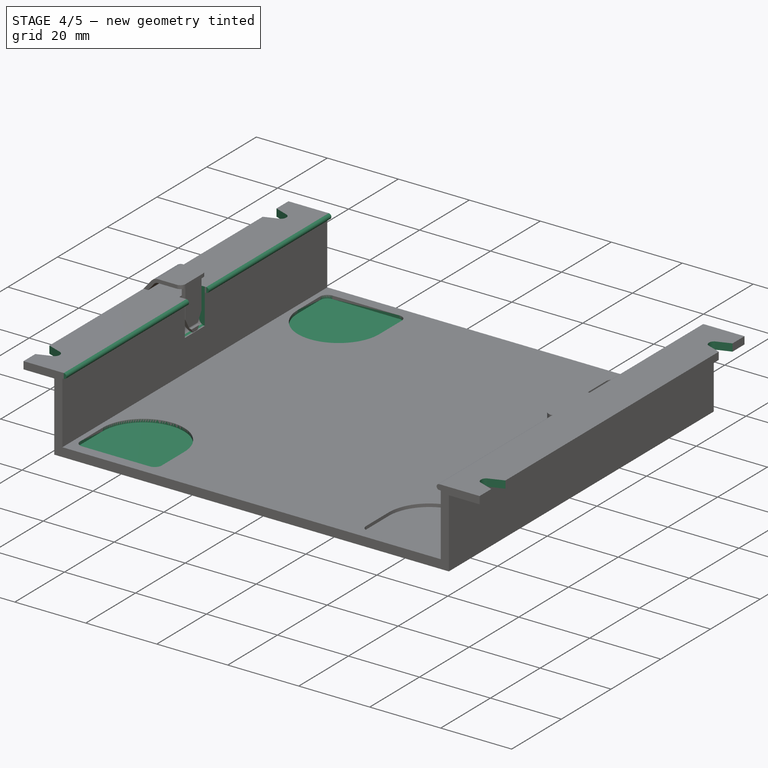
[diagram: stage 4 of 5 — iso view after this stage's code; geometry added in this stage tinted green]
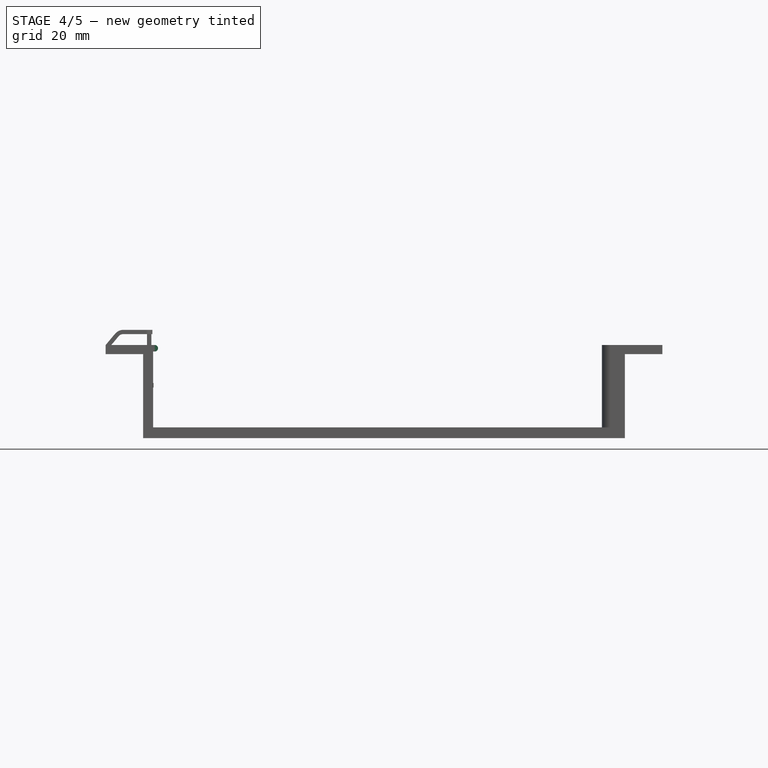
[diagram: stage 4 of 5 — front view after this stage's code; geometry added in this stage tinted green]
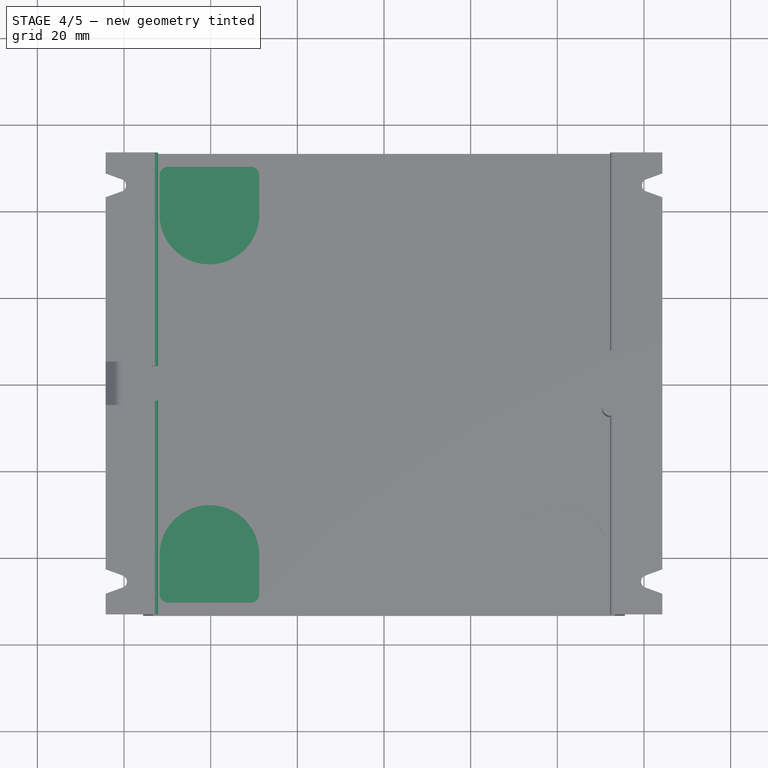
[diagram: stage 4 of 5 — top view after this stage's code; geometry added in this stage tinted green]
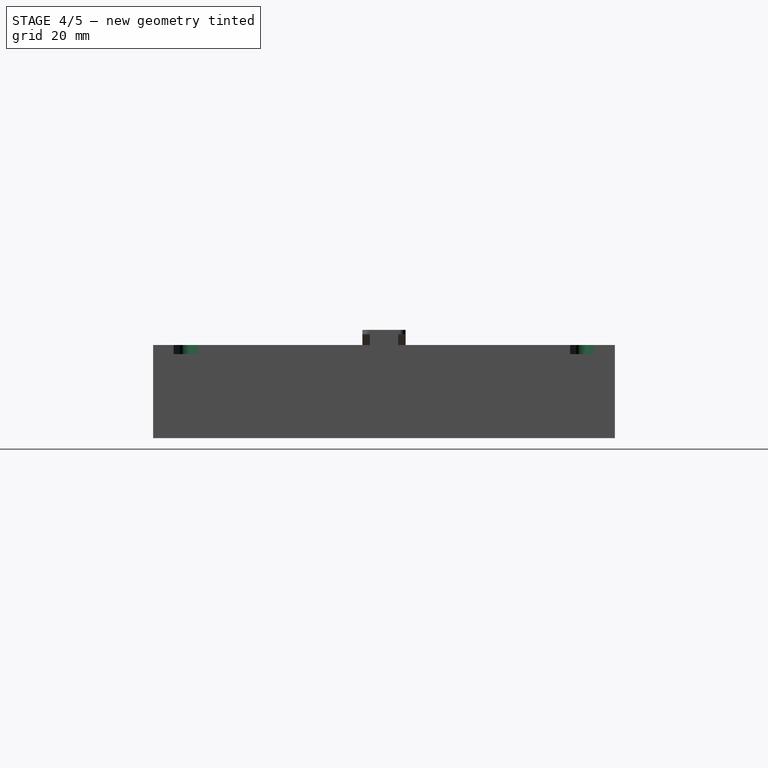
[diagram: stage 4 of 5 — right view after this stage's code; geometry added in this stage tinted green]
FEATURE [Sketcher::SketchObject] Sketch004
  FullyConstrained = true
  MapMode = 5
  Support = -> [XY_Plane001]
  sketch-geometry (16):
    g0: LineSegment StartX=0 StartY=-53.3 StartZ=0 EndX=64.25 EndY=-53.3 EndZ=0
    g1: LineSegment StartX=64.25 StartY=-53.3 StartZ=0 EndX=64.25 EndY=0 EndZ=0
    g2: ArcOfCircle CenterX=60.75 CenterY=-45.8 CenterZ=0 NormalX=0 NormalY=0 NormalZ=1 AngleXU=0 Radius=1.4 StartAngle=3.14159 EndAngle=4.36332
    g3: ArcOfCircle CenterX=60.75 CenterY=-45.65 CenterZ=0 NormalX=0 NormalY=0 NormalZ=1 AngleXU=0 Radius=1.4 StartAngle=1.91986 EndAngle=3.14159
    g4: LineSegment StartX=64.25 StartY=0 StartZ=0 EndX=64.25 EndY=53.3 EndZ=0
    g5: LineSegment StartX=64.25 StartY=53.3 StartZ=0 EndX=0 EndY=53.3 EndZ=0
    g6: ArcOfCircle CenterX=60.95 CenterY=45.8 CenterZ=0 NormalX=0 NormalY=0 NormalZ=1 AngleXU=0 Radius=1.4 StartAngle=1.91986 EndAngle=3.14159
    g7: ArcOfCircle CenterX=60.95 CenterY=45.65 CenterZ=0 NormalX=0 NormalY=0 NormalZ=1 AngleXU=0 Radius=1.4 StartAngle=3.14159 EndAngle=4.36332
    g8: LineSegment StartX=59.35 StartY=-45.65 StartZ=0 EndX=59.35 EndY=-45.8 EndZ=0
    g9: LineSegment StartX=59.55 StartY=45.8 StartZ=0 EndX=59.55 EndY=45.65 EndZ=0
    g10: LineSegment StartX=60.2712 StartY=-44.3344 StartZ=0 EndX=64.25 EndY=-42.8863 EndZ=0
    g11: LineSegment StartX=60.2712 StartY=-47.1156 StartZ=0 EndX=64.25 EndY=-48.5637 EndZ=0
    g12: LineSegment StartX=60.4712 StartY=47.1156 StartZ=0 EndX=64.25 EndY=48.491 EndZ=0
    g13: LineSegment StartX=60.4712 StartY=44.3344 StartZ=0 EndX=64.25 EndY=42.959 EndZ=0
    g14: LineSegment StartX=64.25 StartY=-42.8863 StartZ=0 EndX=64.25 EndY=-48.5637 EndZ=0
    g15: LineSegment StartX=64.25 StartY=48.491 StartZ=0 EndX=64.25 EndY=42.959 EndZ=0
  constraints (45):
    c: PointOnObject(g0,g-2)
    c: Horizontal(g0)
    c: DistanceY(g0,g-1) = 53.3
    c: DistanceX(g0,g0) = 64.25
    c: Coincident(g1,g0)
    c: PointOnObject(g1,g-1)
    c: Vertical(g1)
    c: DistanceX(g2,g0) = 3.5
    c: DistanceY(g0,g2) = 7.5
    c: Vertical(g3,g2)
    c: DistanceY(g3,g1) = 45.65
    c: Diameter(g2) = 2.8
    c: Equal(g3,g2)
    c: Coincident(g4,g1)
    c: Vertical(g4)
    c: Coincident(g5,g4)
    c: PointOnObject(g5,g-2)
    c: Horizontal(g5)
    c: Equal(g4,g1)
    c: DistanceX(g6,g4) = 3.3
    c: DistanceY(g6,g4) = 7.5
    c: Vertical(g7,g6)
    c: DistanceY(g4,g7) = 45.65
    c: Equal(g7,g3)
    c: Equal(g6,g3)
    c: Tangent(g3,g8) = -1.5708
    c: Tangent(g2,g8) = -1.5708
    c: Tangent(g7,g9) = -1.5708
    c: Tangent(g6,g9) = -1.5708
    c: PointOnObject(g10,g1)
    c: PointOnObject(g11,g1)
    c: PointOnObject(g12,g4)
    c: PointOnObject(g13,g4)
    c: Coincident(g14,g10)
    c: Coincident(g14,g11)
    c: Equal(g10,g11)
    c: Angle(g11,g10) = 0.698132
    c: Equal(g12,g13)
    c: Coincident(g15,g12)
    c: Coincident(g15,g13)
    c: Angle(g13,g12) = 0.698132
    c: Tangent(g2,g11) = -1.5708
    c: Tangent(g3,g10) = 1.5708
    c: Tangent(g7,g13) = -1.5708
    c: Tangent(g6,g12) = 1.5708
FEATURE [PartDesign::Pocket] Pocket001  label="Hole"
  BaseFeature = -> Pocket
  Direction = (0,0,-1)
  Length = 5
  Length2 = 5
  Placement = pos=(0,0,0) rot=(1,0,0;1.5708rad)
  Profile = -> Sketch004
  ReferenceAxis = -> Sketch004 [N_Axis]
  Reversed = true
  Type = 0
FEATURE [PartDesign::Mirrored] Mirrored
  BaseFeature = -> Pocket001
  MirrorPlane = -> Sketch002 [V_Axis]
  Originals = -> [Pad002,Pocket,Pocket001]
  Placement = pos=(0,0,0) rot=(1,0,0;1.5708rad)
FEATURE [PartDesign::Pocket] Pocket011  label="Pusher cutout"
  BaseFeature = -> Mirrored
  Direction = (0,1,2e-16)
  Length = 8
  Length2 = 5
  Midplane = true
  Placement = pos=(0,0,0) rot=(1,0,0;1.5708rad)
  Profile = -> Sketch024
  ReferenceAxis = -> Sketch024 [N_Axis]
  Type = 0
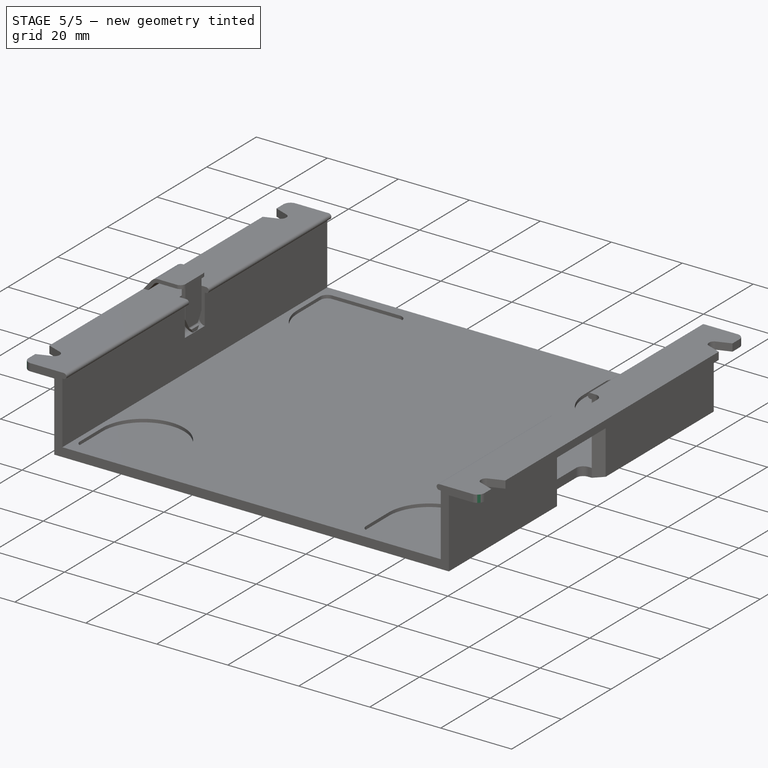
[diagram: stage 5 of 5 — iso view after this stage's code; geometry added in this stage tinted green]
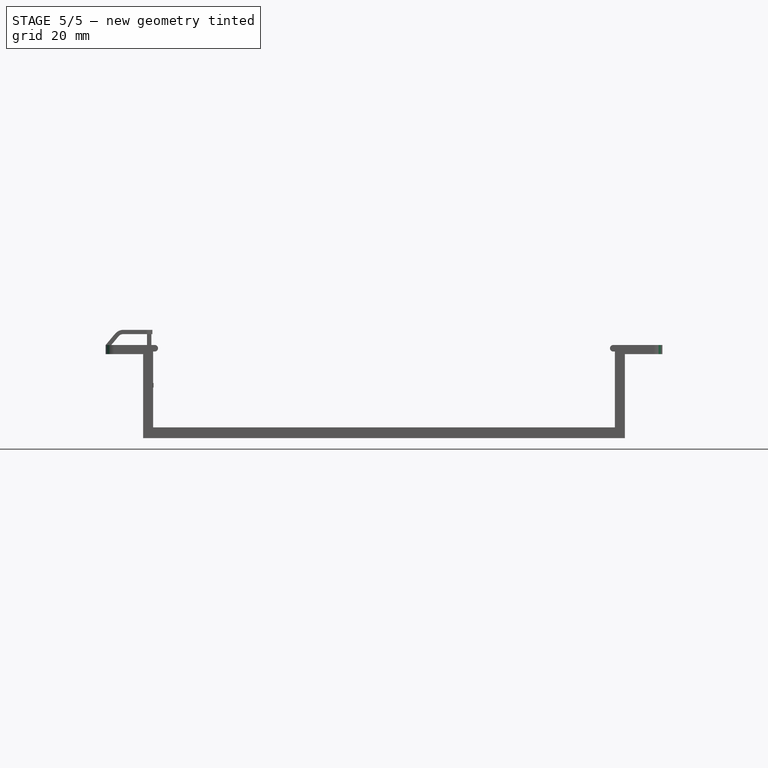
[diagram: stage 5 of 5 — front view after this stage's code; geometry added in this stage tinted green]
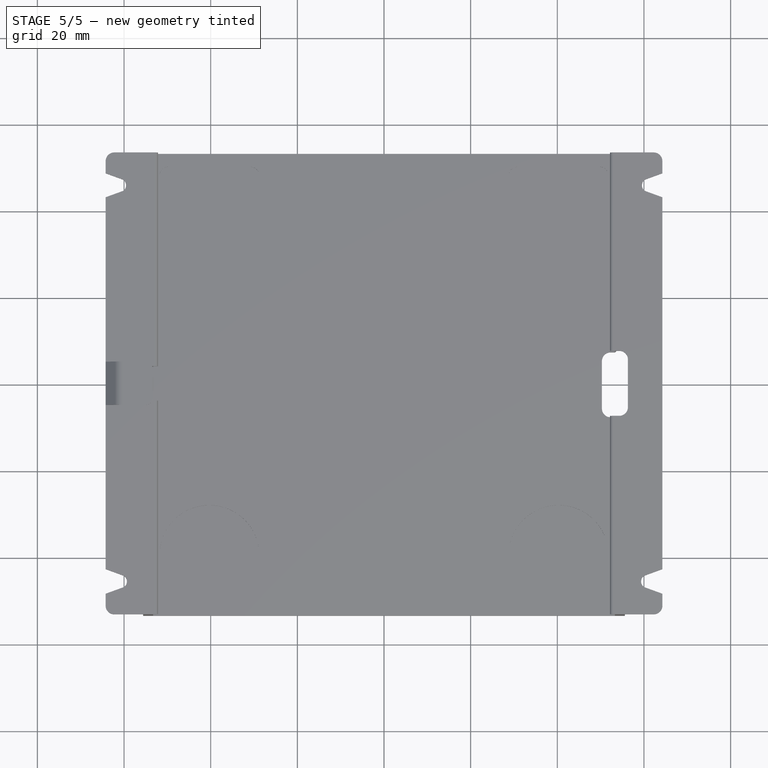
[diagram: stage 5 of 5 — top view after this stage's code; geometry added in this stage tinted green]
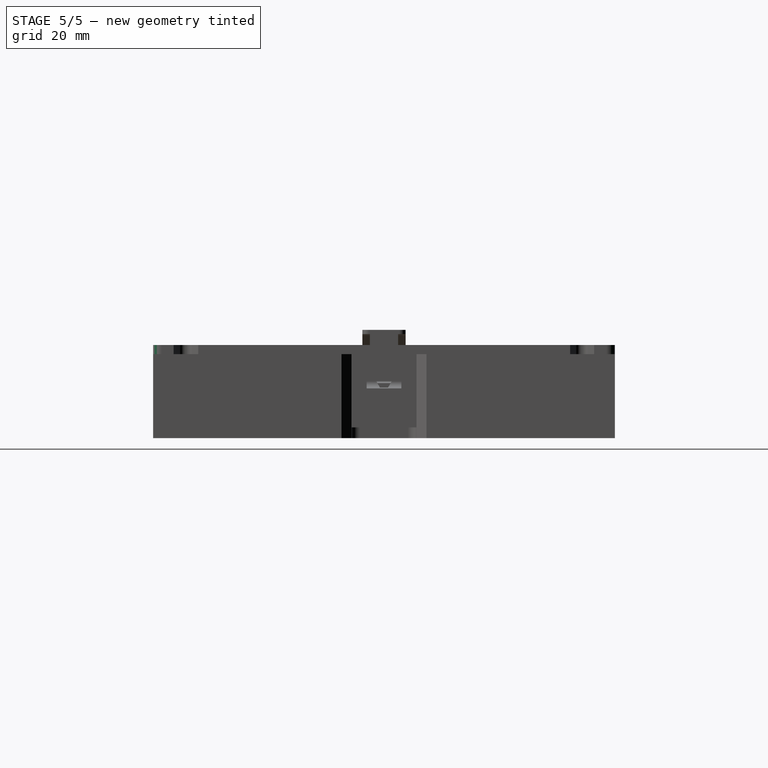
[diagram: stage 5 of 5 — right view after this stage's code; geometry added in this stage tinted green]
FEATURE [PartDesign::Body] Body
  Group = -> [Sketch025,Sketch027,Pad003,Pad,Pocket012,Mirrored001,Sketch028,Fillet]
  Origin = -> Origin
  Tip = -> Fillet
FEATURE [PartDesign::Boolean] Boolean
  BaseFeature = -> Pocket011
  Group = -> [Body]
  Type = 0
FEATURE [PartDesign::Body] Body002
  Group = -> [Sketch011,Pad004,Sketch029,Pad005]
  Origin = -> Origin002
  Tip = -> Pad005
FEATURE [PartDesign::Boolean] Boolean001
  BaseFeature = -> Boolean
  Group = -> [Body002]
  Type = 1
FEATURE [PartDesign::Fillet] Fillet001
  Base = -> Boolean001 [Edge65,Edge35,Edge57,Edge27]
  BaseFeature = -> Boolean001
  Radius = 2
  SupportTransform = false
  UseAllEdges = false
FEATURE [PartDesign::Body] Body001  label="Eurorack_case"
  Group = -> [Sketch001,Pad001,Sketch002,Pad002,Sketch003,Pocket,Sketch004,Pocket001,Mirrored,Pocket011,Sketch024,Boolean,Boolean001,Fillet001]
  Origin = -> Origin001
  Tip = -> Fillet001
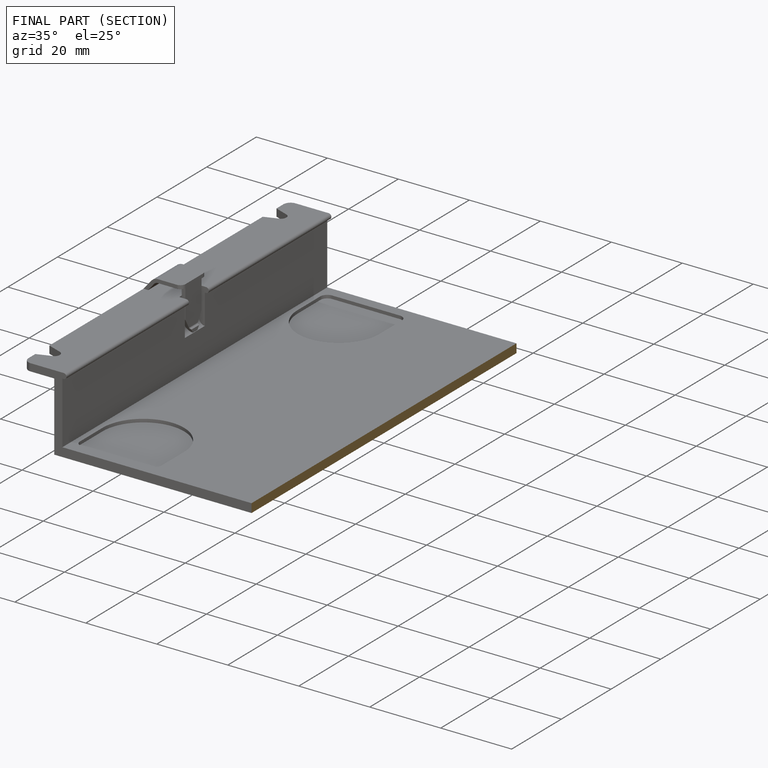
[diagram: finished part — half-section view (interior)]
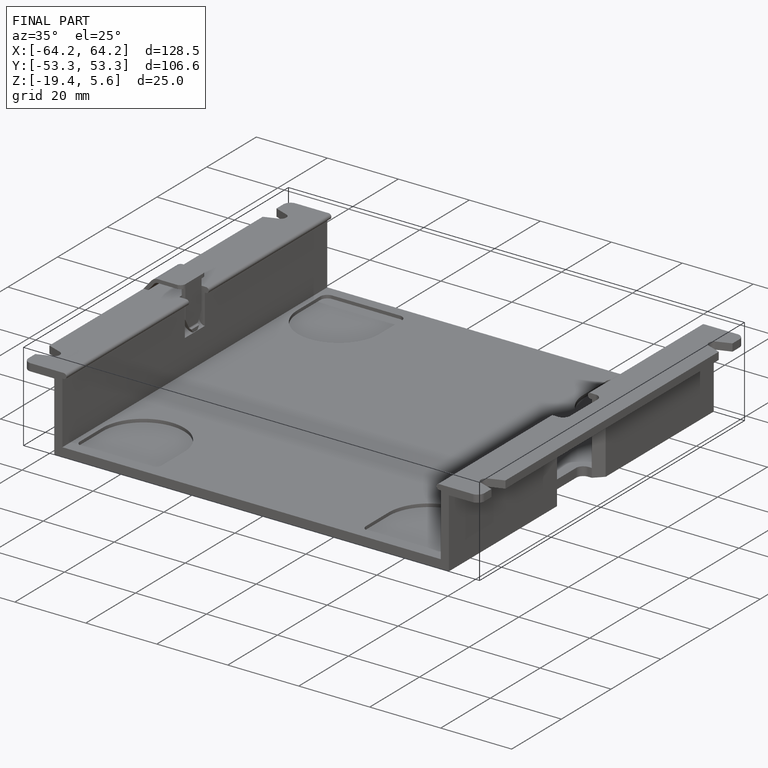
[diagram: finished part — iso view with bounding-box wireframe]
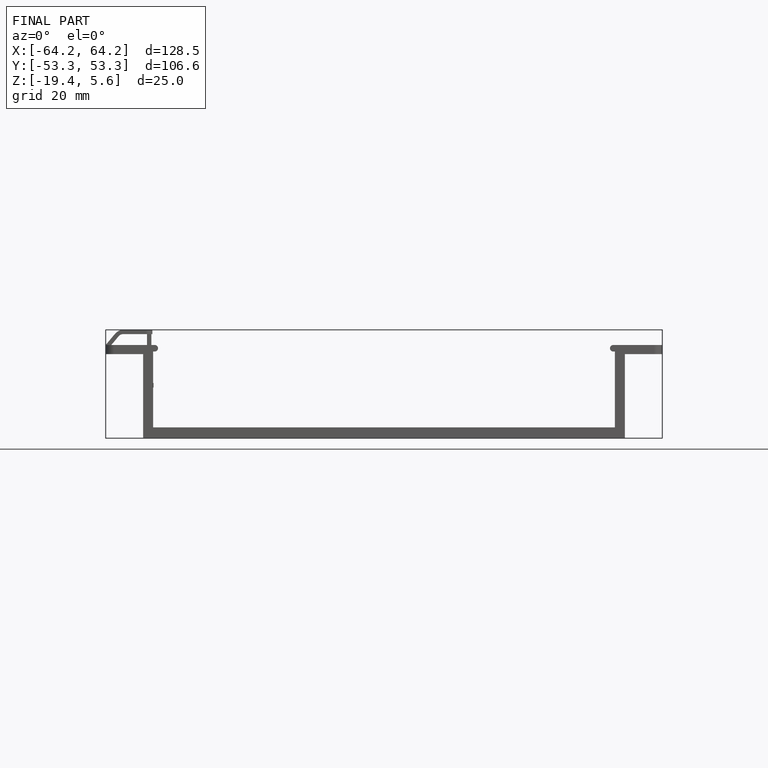
[diagram: finished part — front view with bounding-box wireframe]
